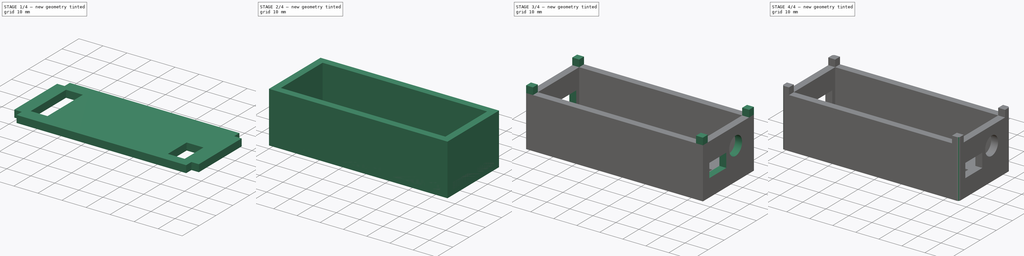
[diagram: build sequence overview — one tinted view per stage of 4, left to right]
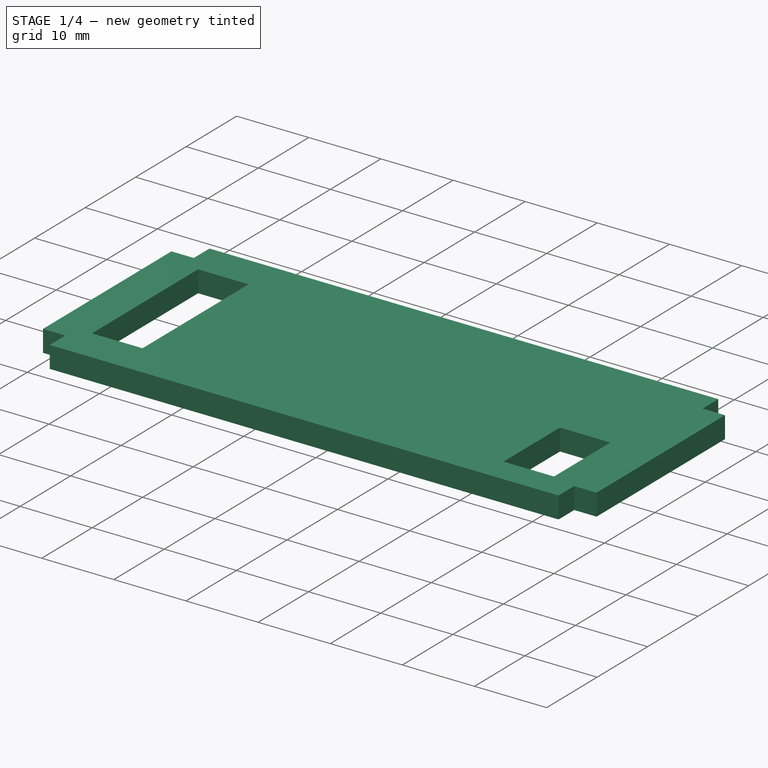
[diagram: stage 1 of 4 — iso view after this stage's code; geometry added in this stage tinted green]
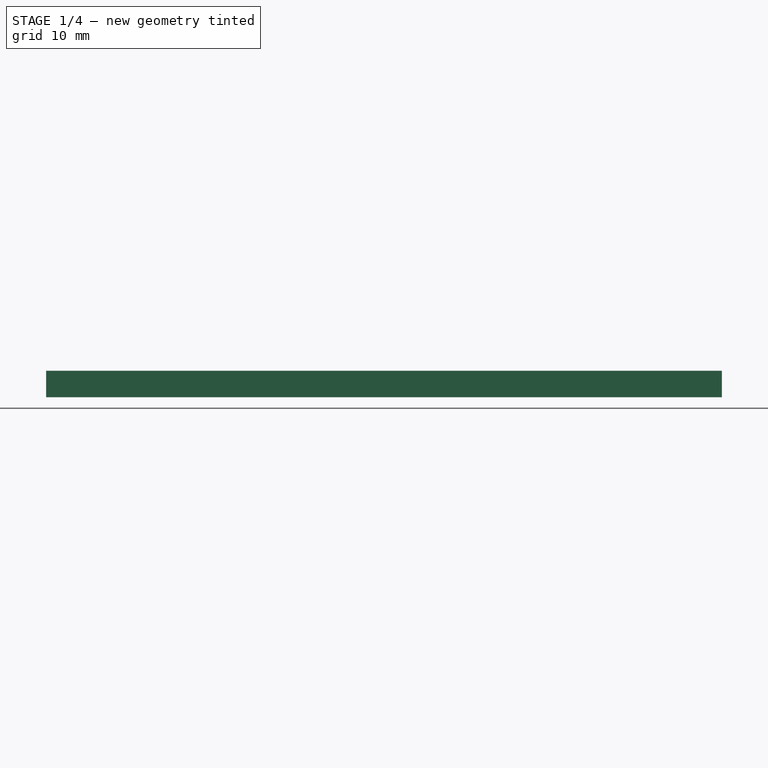
[diagram: stage 1 of 4 — front view after this stage's code; geometry added in this stage tinted green]
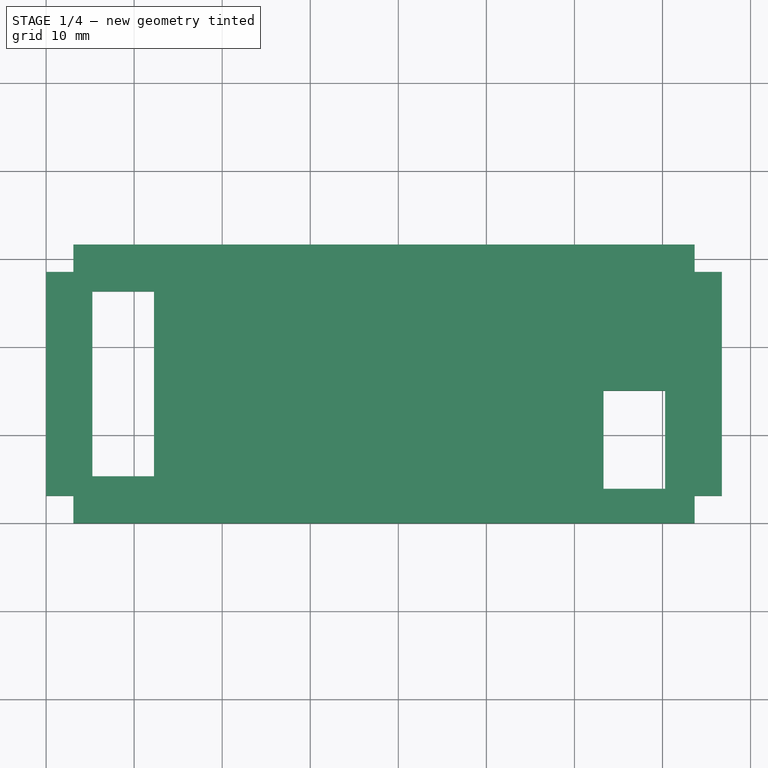
[diagram: stage 1 of 4 — top view after this stage's code; geometry added in this stage tinted green]
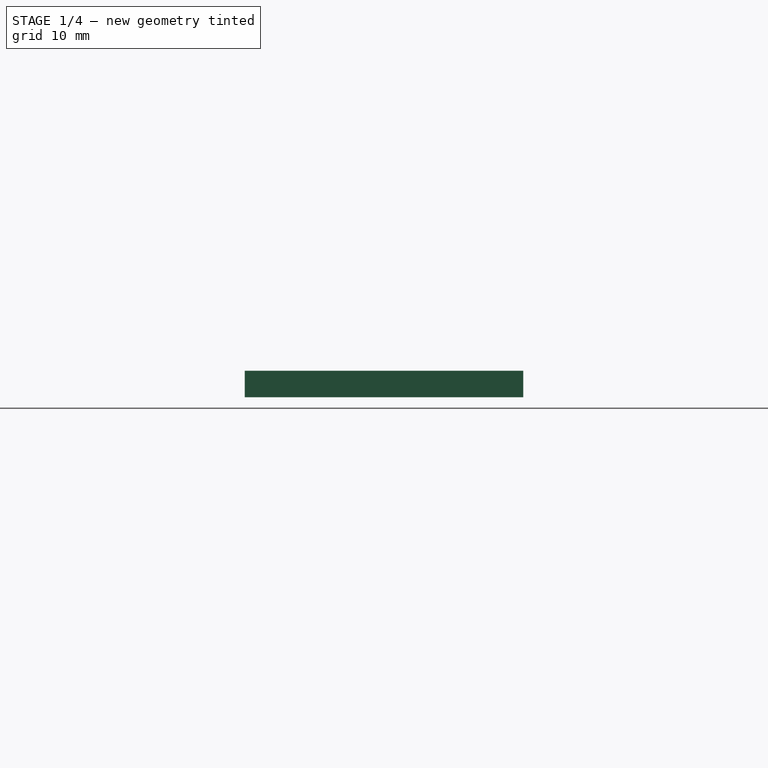
[diagram: stage 1 of 4 — right view after this stage's code; geometry added in this stage tinted green]
FCSTD DOCUMENT  (FreeCAD 0.20R29603 (Git))
Label: Case1
License: All rights reserved
LicenseURL: http://en.wikipedia.org/wiki/All_rights_reserved
objects: Sketcher::SketchObject×8, PartDesign::Pad×5, PartDesign::Pocket×3, PartDesign::Fillet×2, PartDesign::Body×2
note: 30 computed .brp shape members not serialized (recipe doc carries the construction recipe); baked Part::Feature solids carry a one-line shape summary decoded from their .brp

FEATURE [PartDesign::Body] Body
  Group = -> [Sketch,Pad,Sketch001,Pad001,Sketch002,Pad002,Sketch003,Pad003,Sketch004,Pocket,Sketch005,Pocket001,Fillet,Fillet001]
  Origin = -> Origin
  Tip = -> Fillet001
FEATURE [Sketcher::SketchObject] Sketch006
  FullyConstrained = true
  MapMode = 5
  Support = -> [XY_Plane001]
  sketch-geometry (18):
    g0: LineSegment StartX=3.1 StartY=31.63 StartZ=0 EndX=3.1 EndY=28.53 EndZ=0
    g1: LineSegment StartX=3.1 StartY=28.53 StartZ=0 EndX=0 EndY=28.53 EndZ=0
    g2: LineSegment StartX=0 StartY=28.53 StartZ=0 EndX=0 EndY=3.1 EndZ=0
    g3: LineSegment StartX=0 StartY=3.1 StartZ=0 EndX=3.1 EndY=3.1 EndZ=0
    g4: LineSegment StartX=3.1 StartY=3.1 StartZ=0 EndX=3.1 EndY=0 EndZ=0
    g5: LineSegment StartX=3.1 StartY=0 StartZ=0 EndX=73.648 EndY=0 EndZ=0
    g6: LineSegment StartX=73.648 StartY=0 StartZ=0 EndX=73.648 EndY=3.1 EndZ=0
    g7: LineSegment StartX=73.648 StartY=3.1 StartZ=0 EndX=76.748 EndY=3.1 EndZ=0
    g8: LineSegment StartX=76.748 StartY=3.1 StartZ=0 EndX=76.748 EndY=28.53 EndZ=0
    g9: LineSegment StartX=76.748 StartY=28.53 StartZ=0 EndX=73.648 EndY=28.53 EndZ=0
    g10: LineSegment StartX=73.648 StartY=28.53 StartZ=0 EndX=73.648 EndY=31.63 EndZ=0
    g11: LineSegment StartX=73.648 StartY=31.63 StartZ=0 EndX=3.1 EndY=31.63 EndZ=0
    g12: LineSegment StartX=73.648 StartY=28.53 StartZ=0 EndX=73.648 EndY=3.1 EndZ=0
    g13: LineSegment StartX=73.648 StartY=3.1 StartZ=0 EndX=3.1 EndY=3.1 EndZ=0
    g14: LineSegment StartX=3.1 StartY=3.1 StartZ=0 EndX=3.1 EndY=28.53 EndZ=0
    g15: LineSegment StartX=3.1 StartY=28.53 StartZ=0 EndX=73.648 EndY=28.53 EndZ=0
    g16: LineSegment StartX=0 StartY=3.1 StartZ=0 EndX=0 EndY=0 EndZ=0
    g17: LineSegment StartX=0 StartY=0 StartZ=0 EndX=3.1 EndY=0 EndZ=0
  constraints (48):
    c: Vertical(g0)
    c: Coincident(g0,g1)
    c: Horizontal(g1)
    c: Coincident(g1,g2)
    c: Vertical(g2)
    c: Coincident(g2,g3)
    c: Horizontal(g3)
    c: Coincident(g3,g4)
    c: Vertical(g4)
    c: Coincident(g4,g5)
    c: Horizontal(g5)
    c: Coincident(g5,g6)
    c: Coincident(g6,g7)
    c: Horizontal(g7)
    c: Coincident(g7,g8)
    c: Coincident(g8,g9)
    c: Coincident(g9,g10)
    c: Vertical(g10)
    c: Coincident(g10,g11)
    c: Coincident(g11,g0)
    c: Horizontal(g11)
    c: Horizontal(g9)
    c: Vertical(g6)
    c: Vertical(g8)
    c: Coincident(g12,g9)
    c: Coincident(g12,g6)
    c: Vertical(g12)
    c: Coincident(g13,g6)
    c: Coincident(g13,g3)
    c: Horizontal(g13)
    c: Coincident(g14,g3)
    c: Coincident(g14,g0)
    c: Vertical(g14)
    c: Coincident(g15,g0)
    c: Coincident(g15,g9)
    c: Horizontal(g15)
    c: DistanceX(g2,g7) = 76.748
    c: DistanceY(g4,g0) = 31.63
    c: Equal(g4,g0)
    c: Equal(g3,g7)
    c: Equal(g4,g3)
    c: Coincident(g16,g2)
    c: Vertical(g16)
    c: Coincident(g17,g16)
    c: Coincident(g17,g4)
    c: Horizontal(g17)
    c: Coincident(g16,g-1)
    c: Distance(g4) = 3.1
FEATURE [PartDesign::Pad] Pad004
  Direction = (0,0,1)
  Length = 3
  Length2 = 10
  Profile = -> Sketch006
  ReferenceAxis = -> Sketch006 [N_Axis]
  Type = 0
FEATURE [Sketcher::SketchObject] Sketch007
  ExternalGeometry = -> [Pad004]
  FullyConstrained = true
  MapMode = 5
  Placement = pos=(0,0,3) rot=(0,0,1;0rad)
  Support = -> [Pad004]
  expr: Constraints[15] = 3 + 0.75 + 2 - 0.5
  expr: Constraints[27] = 10.16 + 1
  expr: Constraints[28] = 3 + 0.75 + 0.64 - 0.5
  expr: Constraints[31] = 3 + 0.75 + 2.7
  sketch-geometry (12):
    g0: LineSegment StartX=5.25 StartY=26.315 StartZ=0 EndX=12.25 EndY=26.315 EndZ=0
    g1: LineSegment StartX=12.25 StartY=26.315 StartZ=0 EndX=12.25 EndY=5.315 EndZ=0
    g2: LineSegment StartX=12.25 StartY=5.315 StartZ=0 EndX=5.25 EndY=5.315 EndZ=0
    g3: LineSegment StartX=5.25 StartY=5.315 StartZ=0 EndX=5.25 EndY=26.315 EndZ=0
    g4: LineSegment StartX=3.1 StartY=31.63 StartZ=0 EndX=5.25 EndY=26.315 EndZ=0
    g5: LineSegment StartX=5.25 StartY=5.315 StartZ=0 EndX=3.1 EndY=0 EndZ=0
    g6: LineSegment StartX=73.648 StartY=0 StartZ=0 EndX=70.298 EndY=3.89 EndZ=0
    g7: LineSegment StartX=70.298 StartY=3.89 StartZ=0 EndX=63.298 EndY=3.89 EndZ=0
    g8: LineSegment StartX=63.298 StartY=3.89 StartZ=0 EndX=63.298 EndY=15.05 EndZ=0
    g9: LineSegment StartX=63.298 StartY=15.05 StartZ=0 EndX=70.298 EndY=15.05 EndZ=0
    g10: LineSegment StartX=70.298 StartY=15.05 StartZ=0 EndX=70.298 EndY=3.89 EndZ=0
    g11: LineSegment StartX=70.298 StartY=3.89 StartZ=0 EndX=76.748 EndY=3.1 EndZ=0
  constraints (32):
    c: Coincident(g0,g1)
    c: Coincident(g1,g2)
    c: Coincident(g2,g3)
    c: Coincident(g3,g0)
    c: Horizontal(g0)
    c: Horizontal(g2)
    c: Vertical(g1)
    c: Vertical(g3)
    c: Distance(g1) = 21
    c: Distance(g0) = 7
    c: Coincident(g4,g-3)
    c: Coincident(g4,g0)
    c: Coincident(g5,g2)
    c: Coincident(g5,g-4)
    c: Equal(g5,g4)
    c: DistanceX(g-5,g0) = 5.25
    c: Coincident(g6,g-4)
    c: Coincident(g7,g8)
    c: Coincident(g8,g9)
    c: Coincident(g9,g10)
    c: Coincident(g10,g7)
    c: Horizontal(g7)
    c: Horizontal(g9)
    c: Vertical(g8)
    c: Vertical(g10)
    c: Coincident(g7,g6)
    c: Equal(g9,g0)
    c: Distance(g8) = 11.16
    c: DistanceY(g6,g6) = 3.89
    c: Coincident(g11,g7)
    c: Coincident(g11,g-6)
    c: DistanceX(g11,g11) = 6.45
FEATURE [PartDesign::Pocket] Pocket002
  BaseFeature = -> Pad004
  Direction = (0,0,-1)
  Length = 5
  Length2 = 5
  Profile = -> Sketch007
  ReferenceAxis = -> Sketch007 [N_Axis]
  Type = 1
FEATURE [PartDesign::Body] Body001  label="TopCover"
  Group = -> [Sketch006,Pad004,Sketch007,Pocket002]
  Origin = -> Origin001
  Placement = pos=(0,0,20) rot=(0,0,1;0rad)
  Tip = -> Pocket002
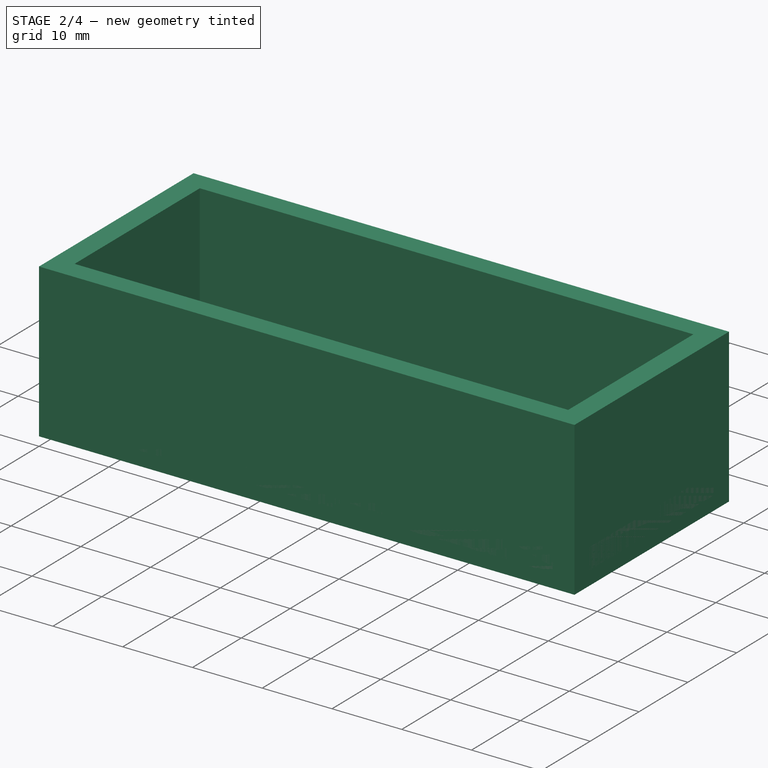
[diagram: stage 2 of 4 — iso view after this stage's code; geometry added in this stage tinted green]
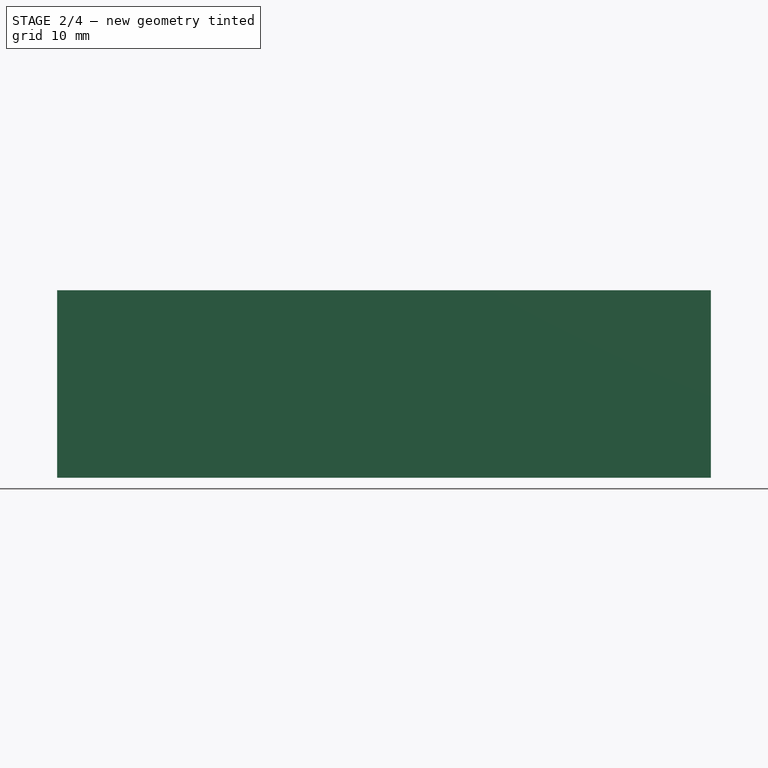
[diagram: stage 2 of 4 — front view after this stage's code; geometry added in this stage tinted green]
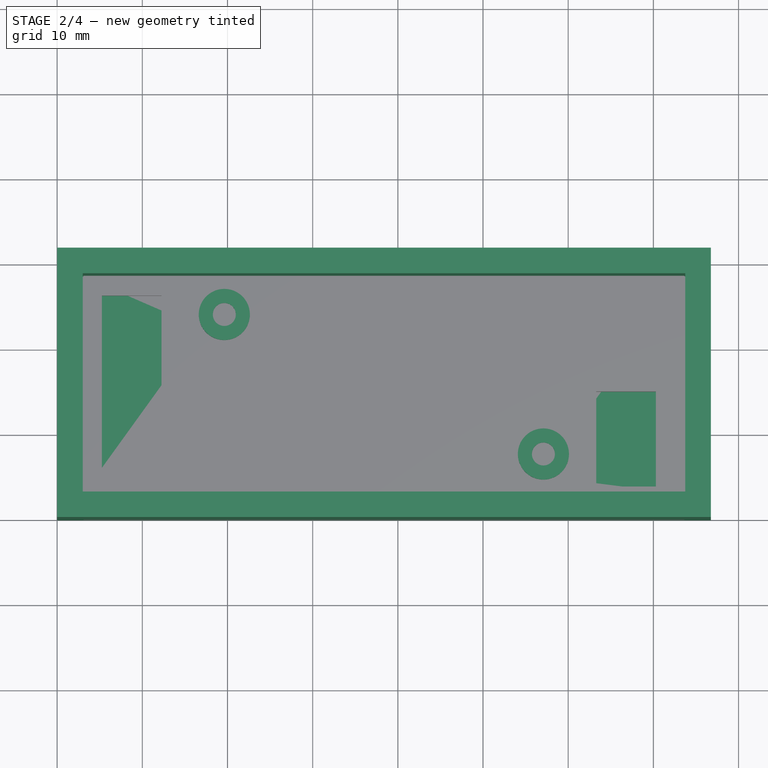
[diagram: stage 2 of 4 — top view after this stage's code; geometry added in this stage tinted green]
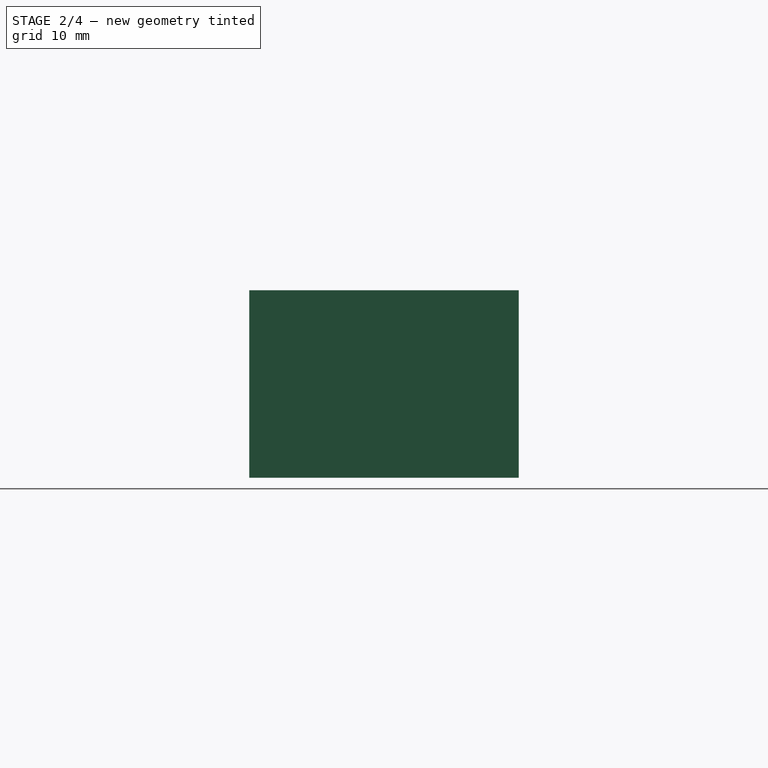
[diagram: stage 2 of 4 — right view after this stage's code; geometry added in this stage tinted green]
FEATURE [Sketcher::SketchObject] Sketch
  FullyConstrained = true
  MapMode = 5
  Support = -> [XY_Plane]
  expr: Constraints[51] = 3 + 0.75
  expr: Constraints[52] = 3 + 0.75 + 2.7
  sketch-geometry (18):
    g0: LineSegment StartX=3.75 StartY=3.75 StartZ=0 EndX=70.298 EndY=3.75 EndZ=0
    g1: LineSegment StartX=70.298 StartY=3.75 StartZ=0 EndX=70.298 EndY=27.88 EndZ=0
    g2: LineSegment StartX=70.298 StartY=27.88 StartZ=0 EndX=3.75 EndY=27.88 EndZ=0
    g3: LineSegment StartX=3.75 StartY=27.88 StartZ=0 EndX=3.75 EndY=3.75 EndZ=0
    g4: LineSegment StartX=0 StartY=0 StartZ=0 EndX=76.748 EndY=0 EndZ=0
    g5: LineSegment StartX=76.748 StartY=0 StartZ=0 EndX=76.748 EndY=31.63 EndZ=0
    g6: LineSegment StartX=76.748 StartY=31.63 StartZ=0 EndX=0 EndY=31.63 EndZ=0
    g7: LineSegment StartX=0 StartY=31.63 StartZ=0 EndX=0 EndY=0 EndZ=0
    g8: LineSegment StartX=76.748 StartY=28.63 StartZ=0 EndX=0 EndY=28.63 EndZ=0
    g9: LineSegment StartX=0 StartY=28.63 StartZ=0 EndX=0 EndY=3 EndZ=0
    g10: LineSegment StartX=0 StartY=3 StartZ=0 EndX=76.748 EndY=3 EndZ=0
    g11: LineSegment StartX=76.748 StartY=3 StartZ=0 EndX=76.748 EndY=28.63 EndZ=0
    g12: LineSegment StartX=70.298 StartY=27.88 StartZ=0 EndX=70.298 EndY=28.63 EndZ=0
    g13: LineSegment StartX=3.75 StartY=3.75 StartZ=0 EndX=3.75 EndY=3 EndZ=0
    g14: LineSegment StartX=0 StartY=3 StartZ=0 EndX=0 EndY=0 EndZ=0
    g15: LineSegment StartX=76.748 StartY=28.63 StartZ=0 EndX=76.748 EndY=31.63 EndZ=0
    g16: LineSegment StartX=3.75 StartY=3.75 StartZ=0 EndX=0 EndY=3.75 EndZ=0
    g17: LineSegment StartX=70.298 StartY=27.88 StartZ=0 EndX=76.748 EndY=27.88 EndZ=0
  constraints (55):
    c: Coincident(g0,g1)
    c: Coincident(g1,g2)
    c: Coincident(g2,g3)
    c: Coincident(g3,g0)
    c: Horizontal(g0)
    c: Horizontal(g2)
    c: Vertical(g1)
    c: Vertical(g3)
    c: Distance(g3) = 24.13
    c: Distance(g0) = 66.548
    c: Coincident(g4,g5)
    c: Coincident(g5,g6)
    c: Coincident(g6,g7)
    c: Coincident(g7,g4)
    c: Horizontal(g4)
    c: Horizontal(g6)
    c: Vertical(g5)
    c: Vertical(g7)
    c: Coincident(g4,g-1)
    c: Coincident(g8,g9)
    c: Coincident(g9,g10)
    c: Coincident(g10,g11)
    c: Coincident(g11,g8)
    c: Horizontal(g8)
    c: Horizontal(g10)
    c: Vertical(g9)
    c: Vertical(g11)
    c: Coincident(g12,g1)
    c: PointOnObject(g12,g8)
    c: Vertical(g12)
    c: Coincident(g13,g0)
    c: PointOnObject(g13,g10)
    c: Vertical(g13)
    c: Equal(g13,g12)
    c: Distance(g13) = 0.75
    c: Coincident(g14,g9)
    c: PointOnObject(g14,g4)
    c: Vertical(g14)
    c: Coincident(g15,g8)
    c: PointOnObject(g15,g6)
    c: Vertical(g15)
    c: Equal(g15,g14)
    c: Distance(g14) = 3
    c: Vertical(g15,g5)
    c: Vertical(g14,g4)
    c: Coincident(g16,g0)
    c: PointOnObject(g16,g7)
    c: Horizontal(g16)
    c: Coincident(g17,g1)
    c: PointOnObject(g17,g5)
    c: Horizontal(g17)
    c: Distance(g16) = 3.75
    c: Distance(g17) = 6.45
    c: Distance(g6) = 76.748
    c: Distance(g7) = 31.63
FEATURE [PartDesign::Pad] Pad
  Direction = (0,0,1)
  Length = 2
  Length2 = 10
  Profile = -> Sketch
  ReferenceAxis = -> Sketch [N_Axis]
  Reversed = true
  Type = 0
FEATURE [Sketcher::SketchObject] Sketch001
  FullyConstrained = true
  MapMode = 5
  Support = -> [Pad]
  expr: Constraints[1] = Sketch.Constraints[8]
  expr: Constraints[20] = Sketch.Constraints[8]
  expr: Constraints[21] = Sketch.Constraints[9]
  expr: Constraints[46] = Sketch.Constraints[34]
  expr: Constraints[54] = Sketch.Constraints[42]
  expr: Constraints[64] = Sketch.Constraints[51]
  sketch-geometry (23):
    g0: LineSegment StartX=3.75 StartY=27.88 StartZ=0 EndX=3.75 EndY=3.75 EndZ=0
    g1: Circle CenterX=19.625 CenterY=24.07 CenterZ=0 NormalX=0 NormalY=0 NormalZ=1 AngleXU=0 Radius=3
    g2: Circle CenterX=19.625 CenterY=24.07 CenterZ=0 NormalX=0 NormalY=0 NormalZ=1 AngleXU=0 Radius=1.35
    g3: Circle CenterX=57.09 CenterY=7.687 CenterZ=0 NormalX=0 NormalY=0 NormalZ=1 AngleXU=0 Radius=3
    g4: Circle CenterX=57.09 CenterY=7.687 CenterZ=0 NormalX=0 NormalY=0 NormalZ=1 AngleXU=0 Radius=1.35
    g5: LineSegment StartX=3.75 StartY=3.75 StartZ=0 EndX=70.298 EndY=3.75 EndZ=0
    g6: LineSegment StartX=70.298 StartY=3.75 StartZ=0 EndX=70.298 EndY=27.88 EndZ=0
    g7: LineSegment StartX=70.298 StartY=27.88 StartZ=0 EndX=3.75 EndY=27.88 EndZ=0
    g8: LineSegment StartX=3.75 StartY=27.88 StartZ=0 EndX=3.75 EndY=3.75 EndZ=0
    g9: LineSegment StartX=0 StartY=0 StartZ=0 EndX=74.048 EndY=0 EndZ=0
    g10: LineSegment StartX=74.048 StartY=0 StartZ=0 EndX=74.048 EndY=31.63 EndZ=0
    g11: LineSegment StartX=74.048 StartY=31.63 StartZ=0 EndX=0 EndY=31.63 EndZ=0
    g12: LineSegment StartX=0 StartY=31.63 StartZ=0 EndX=0 EndY=0 EndZ=0
    g13: LineSegment StartX=74.048 StartY=28.63 StartZ=0 EndX=0 EndY=28.63 EndZ=0
    g14: LineSegment StartX=0 StartY=28.63 StartZ=0 EndX=0 EndY=3 EndZ=0
    g15: LineSegment StartX=0 StartY=3 StartZ=0 EndX=74.048 EndY=3 EndZ=0
    g16: LineSegment StartX=74.048 StartY=3 StartZ=0 EndX=74.048 EndY=28.63 EndZ=0
    g17: LineSegment StartX=70.298 StartY=27.88 StartZ=0 EndX=70.298 EndY=28.63 EndZ=0
    g18: LineSegment StartX=3.75 StartY=3.75 StartZ=0 EndX=3.75 EndY=3 EndZ=0
    g19: LineSegment StartX=0 StartY=3 StartZ=0 EndX=0 EndY=0 EndZ=0
    g20: LineSegment StartX=74.048 StartY=28.63 StartZ=0 EndX=74.048 EndY=31.63 EndZ=0
    g21: LineSegment StartX=3.75 StartY=3.75 StartZ=0 EndX=0 EndY=3.75 EndZ=0
    g22: LineSegment StartX=70.298 StartY=27.88 StartZ=0 EndX=74.048 EndY=27.88 EndZ=0
  constraints (66):
    c: Vertical(g0)
    c: Distance(g0) = 24.13
    c: Coincident(g2,g1)
    c: Coincident(g4,g3)
    c: Equal(g4,g2)
    c: Equal(g1,g3)
    c: Diameter(g2) = 2.7
    c: Diameter(g1) = 6
    c: DistanceX(g0,g1) = 15.875
    c: DistanceX(g0,g3) = 53.34
    c: DistanceY(g1,g0) = 3.81
    c: DistanceY(g3,g0) = 20.193
    c: Coincident(g5,g6)
    c: Coincident(g6,g7)
    c: Coincident(g7,g8)
    c: Coincident(g8,g5)
    c: Horizontal(g5)
    c: Horizontal(g7)
    c: Vertical(g6)
    c: Vertical(g8)
    c: Distance(g8) = 24.13
    c: Distance(g5) = 66.548
    c: Coincident(g9,g10)
    c: Coincident(g10,g11)
    c: Coincident(g11,g12)
    c: Coincident(g12,g9)
    c: Horizontal(g9)
    c: Horizontal(g11)
    c: Vertical(g10)
    c: Vertical(g12)
    c: Coincident(g9,g-1)
    c: Coincident(g13,g14)
    c: Coincident(g14,g15)
    c: Coincident(g15,g16)
    c: Coincident(g16,g13)
    c: Horizontal(g13)
    c: Horizontal(g15)
    c: Vertical(g14)
    c: Vertical(g16)
    c: Coincident(g17,g6)
    c: PointOnObject(g17,g13)
    c: Vertical(g17)
    c: Coincident(g18,g5)
    c: PointOnObject(g18,g15)
    c: Vertical(g18)
    c: Equal(g18,g17)
    c: Distance(g18) = 0.75
    c: Coincident(g19,g14)
    c: PointOnObject(g19,g9)
    c: Vertical(g19)
    c: Coincident(g20,g13)
    c: PointOnObject(g20,g11)
    c: Vertical(g20)
    c: Equal(g20,g19)
    c: Distance(g19) = 3
    c: Vertical(g20,g10)
    c: Vertical(g19,g9)
    c: Coincident(g21,g5)
    c: PointOnObject(g21,g12)
    c: Horizontal(g21)
    c: Coincident(g22,g6)
    c: PointOnObject(g22,g10)
    c: Horizontal(g22)
    c: Equal(g22,g21)
    c: Distance(g21) = 3.75
    c: Coincident(g0,g7)
FEATURE [PartDesign::Pad] Pad001
  BaseFeature = -> Pad
  Direction = (0,0,1)
  Length = 4
  Length2 = 10
  Profile = -> Sketch001
  ReferenceAxis = -> Sketch001 [N_Axis]
  Type = 0
FEATURE [Sketcher::SketchObject] Sketch002
  ExternalGeometry = -> [Pad001]
  FullyConstrained = true
  MapMode = 5
  Support = -> [Pad001]
  sketch-geometry (11):
    g0: LineSegment StartX=0 StartY=0 StartZ=0 EndX=76.748 EndY=0 EndZ=0
    g1: LineSegment StartX=76.748 StartY=0 StartZ=0 EndX=76.748 EndY=31.63 EndZ=0
    g2: LineSegment StartX=0 StartY=31.63 StartZ=0 EndX=0 EndY=0 EndZ=0
    g3: LineSegment StartX=76.748 StartY=31.63 StartZ=0 EndX=0 EndY=31.63 EndZ=0
    g4: LineSegment StartX=3 StartY=28.63 StartZ=0 EndX=73.748 EndY=28.63 EndZ=0
    g5: LineSegment StartX=73.748 StartY=28.63 StartZ=0 EndX=73.748 EndY=3 EndZ=0
    g6: LineSegment StartX=73.748 StartY=3 StartZ=0 EndX=3 EndY=3 EndZ=0
    g7: LineSegment StartX=3 StartY=3 StartZ=0 EndX=3 EndY=28.63 EndZ=0
    g8: LineSegment StartX=73.748 StartY=3 StartZ=0 EndX=76.748 EndY=0 EndZ=0
    g9: LineSegment StartX=73.748 StartY=28.63 StartZ=0 EndX=76.748 EndY=31.63 EndZ=0
    g10: LineSegment StartX=3 StartY=28.63 StartZ=0 EndX=0 EndY=31.63 EndZ=0
  constraints (28):
    c: Coincident(g0,g1)
    c: Coincident(g2,g0)
    c: Horizontal(g0)
    c: Vertical(g1)
    c: Vertical(g2)
    c: Coincident(g0,g-4)
    c: Horizontal(g3)
    c: Coincident(g3,g-3)
    c: Coincident(g1,g3)
    c: Coincident(g2,g3)
    c: Coincident(g4,g5)
    c: Coincident(g5,g6)
    c: Coincident(g6,g7)
    c: Coincident(g7,g4)
    c: Horizontal(g4)
    c: Horizontal(g6)
    c: Vertical(g5)
    c: Vertical(g7)
    c: Coincident(g8,g5)
    c: Coincident(g8,g0)
    c: Coincident(g9,g4)
    c: Coincident(g9,g1)
    c: Coincident(g10,g4)
    c: Coincident(g10,g2)
    c: Equal(g10,g9)
    c: Equal(g9,g8)
    c: DistanceX(g10,g10) = 3
    c: DistanceY(g10,g10) = 3
FEATURE [PartDesign::Pad] Pad002
  BaseFeature = -> Pad001
  Direction = (0,0,1)
  Length = 20
  Length2 = 10
  Profile = -> Sketch002
  ReferenceAxis = -> Sketch002 [N_Axis]
  Type = 0
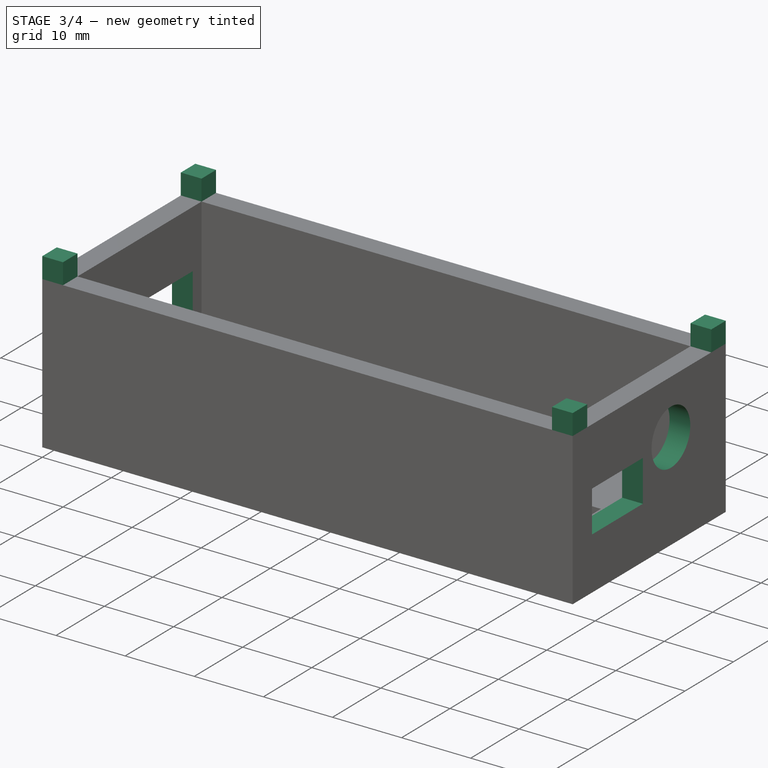
[diagram: stage 3 of 4 — iso view after this stage's code; geometry added in this stage tinted green]
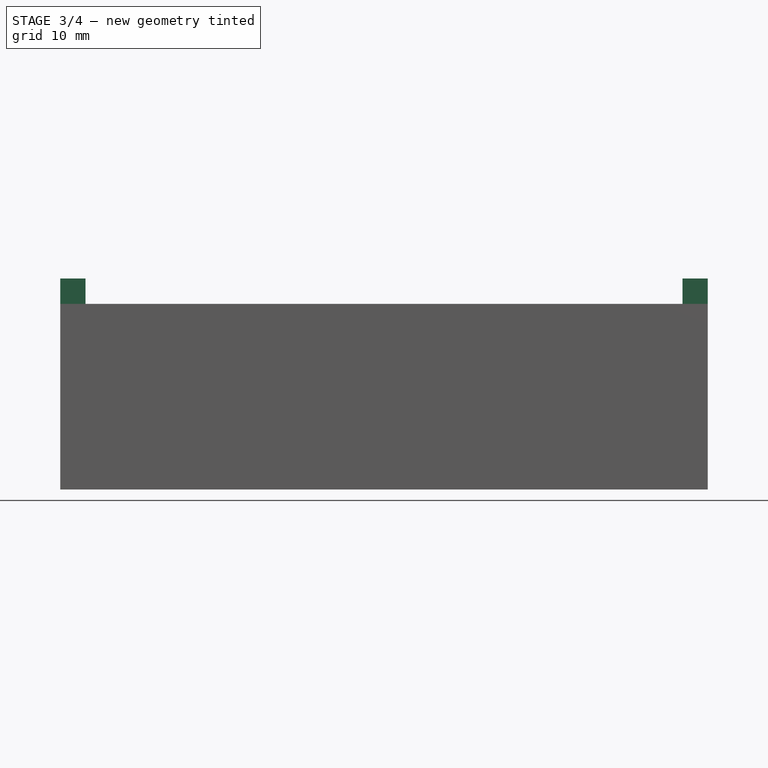
[diagram: stage 3 of 4 — front view after this stage's code; geometry added in this stage tinted green]
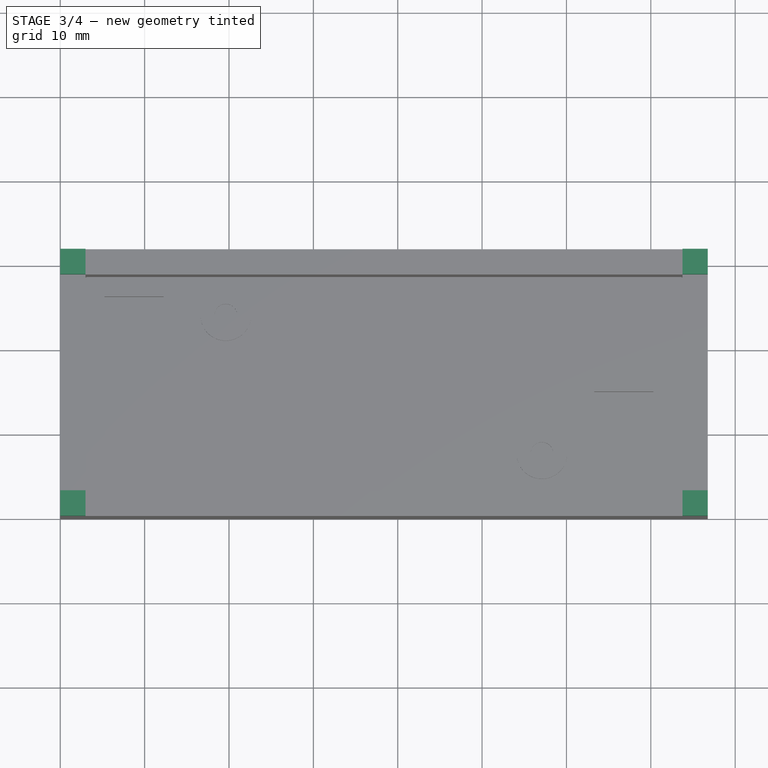
[diagram: stage 3 of 4 — top view after this stage's code; geometry added in this stage tinted green]
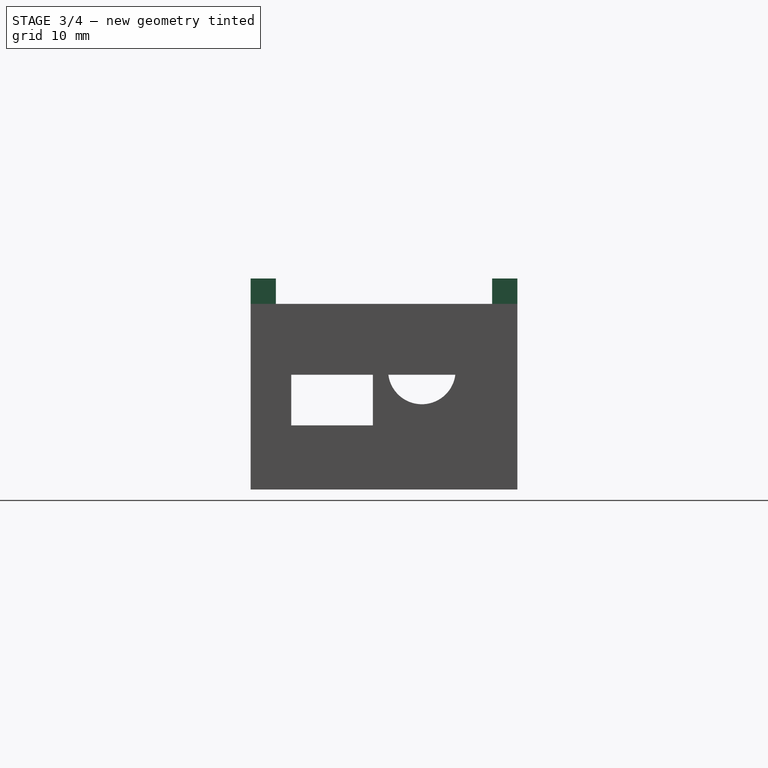
[diagram: stage 3 of 4 — right view after this stage's code; geometry added in this stage tinted green]
FEATURE [Sketcher::SketchObject] Sketch003
  ExternalGeometry = -> [Pad002]
  FullyConstrained = true
  MapMode = 5
  Placement = pos=(0,0,20) rot=(0,0,1;0rad)
  Support = -> [Pad002]
  sketch-geometry (16):
    g0: LineSegment StartX=-2.91647e-11 StartY=31.63 StartZ=0 EndX=3 EndY=31.63 EndZ=0
    g1: LineSegment StartX=3 StartY=31.63 StartZ=0 EndX=3 EndY=28.63 EndZ=0
    g2: LineSegment StartX=3 StartY=28.63 StartZ=0 EndX=-2.91647e-11 EndY=28.63 EndZ=0
    g3: LineSegment StartX=-2.91647e-11 StartY=28.63 StartZ=0 EndX=-2.91647e-11 EndY=31.63 EndZ=0
    g4: LineSegment StartX=76.748 StartY=31.63 StartZ=0 EndX=73.748 EndY=31.63 EndZ=0
    g5: LineSegment StartX=73.748 StartY=31.63 StartZ=0 EndX=73.748 EndY=28.63 EndZ=0
    g6: LineSegment StartX=73.748 StartY=28.63 StartZ=0 EndX=76.748 EndY=28.63 EndZ=0
    g7: LineSegment StartX=76.748 StartY=28.63 StartZ=0 EndX=76.748 EndY=31.63 EndZ=0
    g8: LineSegment StartX=76.748 StartY=0 StartZ=0 EndX=73.748 EndY=0 EndZ=0
    g9: LineSegment StartX=73.748 StartY=0 StartZ=0 EndX=73.748 EndY=3 EndZ=0
    g10: LineSegment StartX=73.748 StartY=3 StartZ=0 EndX=76.748 EndY=3 EndZ=0
    g11: LineSegment StartX=76.748 StartY=3 StartZ=0 EndX=76.748 EndY=0 EndZ=0
    g12: LineSegment StartX=0 StartY=0 StartZ=0 EndX=3 EndY=0 EndZ=0
    g13: LineSegment StartX=3 StartY=0 StartZ=0 EndX=3 EndY=3 EndZ=0
    g14: LineSegment StartX=3 StartY=3 StartZ=0 EndX=0 EndY=3 EndZ=0
    g15: LineSegment StartX=0 StartY=3 StartZ=0 EndX=0 EndY=0 EndZ=0
  constraints (42):
    c: Coincident(g0,g1)
    c: Coincident(g1,g2)
    c: Coincident(g2,g3)
    c: Coincident(g3,g0)
    c: Horizontal(g0)
    c: Horizontal(g2)
    c: Vertical(g1)
    c: Coincident(g4,g5)
    c: Coincident(g5,g6)
    c: Coincident(g6,g7)
    c: Coincident(g7,g4)
    c: Horizontal(g4)
    c: Horizontal(g6)
    c: Vertical(g5)
    c: Coincident(g8,g9)
    c: Coincident(g9,g10)
    c: Coincident(g10,g11)
    c: Coincident(g11,g8)
    c: Horizontal(g8)
    c: Horizontal(g10)
    c: Vertical(g9)
    c: Coincident(g12,g13)
    c: Coincident(g13,g14)
    c: Coincident(g14,g15)
    c: Coincident(g15,g12)
    c: Horizontal(g12)
    c: Horizontal(g14)
    c: Vertical(g13)
    c: Equal(g2,g14)
    c: Equal(g14,g10)
    c: Equal(g10,g6)
    c: Distance(g3) = 3
    c: Equal(g2,g1)
    c: Coincident(g-5,g5)
    c: Coincident(g9,g-5)
    c: Coincident(g1,g-3)
    c: Coincident(g13,g-4)
    c: Coincident(g12,g-1)
    c: Vertical(g15)
    c: Vertical(g3)
    c: Coincident(g-6,g8)
    c: Coincident(g-6,g4)
FEATURE [PartDesign::Pad] Pad003
  BaseFeature = -> Pad002
  Direction = (0,0,1)
  Length = 3
  Length2 = 10
  Profile = -> Sketch003
  ReferenceAxis = -> Sketch003 [N_Axis]
  Type = 0
FEATURE [Sketcher::SketchObject] Sketch004
  ExternalGeometry = -> [Pad003]
  FullyConstrained = true
  MapMode = 5
  Placement = pos=(0,0,0) rot=(0.57735,-0.57735,-0.57735;2.0944rad)
  Support = -> [Pad003]
  expr: Constraints[13] = 4 + 1.6
  sketch-geometry (6):
    g0: LineSegment StartX=-4.815 StartY=11.6 StartZ=0 EndX=-26.815 EndY=11.6 EndZ=0
    g1: LineSegment StartX=-26.815 StartY=11.6 StartZ=0 EndX=-26.815 EndY=5.6 EndZ=0
    g2: LineSegment StartX=-26.815 StartY=5.6 StartZ=0 EndX=-4.815 EndY=5.6 EndZ=0
    g3: LineSegment StartX=-4.815 StartY=5.6 StartZ=0 EndX=-4.815 EndY=11.6 EndZ=0
    g4: LineSegment StartX=-4.815 StartY=5.6 StartZ=0 EndX=0 EndY=0 EndZ=0
    g5: LineSegment StartX=-26.815 StartY=5.6 StartZ=0 EndX=-31.63 EndY=0 EndZ=0
  constraints (16):
    c: Coincident(g0,g1)
    c: Coincident(g1,g2)
    c: Coincident(g2,g3)
    c: Coincident(g3,g0)
    c: Horizontal(g0)
    c: Horizontal(g2)
    c: Vertical(g1)
    c: Vertical(g3)
    c: Coincident(g4,g2)
    c: Coincident(g4,g-1)
    c: Coincident(g5,g1)
    c: Coincident(g5,g-3)
    c: Equal(g4,g5)
    c: DistanceY(g4,g4) = 5.6
    c: Distance(g3) = 6
    c: Distance(g0) = 22
FEATURE [PartDesign::Pocket] Pocket
  BaseFeature = -> Pad003
  Direction = (1,0,0)
  Length = 5
  Length2 = 5
  Profile = -> Sketch004
  ReferenceAxis = -> Sketch004 [N_Axis]
  Type = 2
FEATURE [Sketcher::SketchObject] Sketch005
  FullyConstrained = true
  MapMode = 5
  Placement = pos=(76.748,0,0) rot=(0.57735,0.57735,0.57735;2.0944rad)
  Support = -> [Pocket]
  expr: Constraints[12] = 4 + 1.6
  expr: Constraints[13] = 3 + 0.5 + 0.5
  expr: Constraints[17] = 3 + 0.5 + 16.8
  expr: Constraints[18] = 4 + 1.6 + 6.5
  sketch-geometry (7):
    g0: LineSegment StartX=4 StartY=5.6 StartZ=0 EndX=14.5 EndY=5.6 EndZ=0
    g1: LineSegment StartX=14.5 StartY=5.6 StartZ=0 EndX=14.5 EndY=11.6 EndZ=0
    g2: LineSegment StartX=14.5 StartY=11.6 StartZ=0 EndX=4 EndY=11.6 EndZ=0
    g3: LineSegment StartX=4 StartY=11.6 StartZ=0 EndX=4 EndY=5.6 EndZ=0
    g4: LineSegment StartX=4 StartY=5.6 StartZ=0 EndX=0 EndY=0 EndZ=0
    g5: Circle CenterX=20.3 CenterY=12.1 CenterZ=0 NormalX=0 NormalY=0 NormalZ=1 AngleXU=0 Radius=4
    g6: LineSegment StartX=0 StartY=0 StartZ=0 EndX=20.3 EndY=12.1 EndZ=0
  constraints (19):
    c: Coincident(g0,g1)
    c: Coincident(g1,g2)
    c: Coincident(g2,g3)
    c: Coincident(g3,g0)
    c: Horizontal(g0)
    c: Horizontal(g2)
    c: Vertical(g1)
    c: Vertical(g3)
    c: Distance(g1) = 6
    c: Distance(g2) = 10.5
    c: Coincident(g4,g0)
    c: Coincident(g4,g-1)
    c: DistanceY(g4,g4) = 5.6
    c: DistanceX(g4,g4) = 4
    c: Diameter(g5) = 8
    c: Coincident(g6,g4)
    c: Coincident(g6,g5)
    c: DistanceX(g6,g6) = 20.3
    c: DistanceY(g6,g6) = 12.1
FEATURE [PartDesign::Pocket] Pocket001
  BaseFeature = -> Pocket
  Direction = (-1,0,0)
  Length = 5
  Length2 = 5
  Profile = -> Sketch005
  ReferenceAxis = -> Sketch005 [N_Axis]
  Type = 2
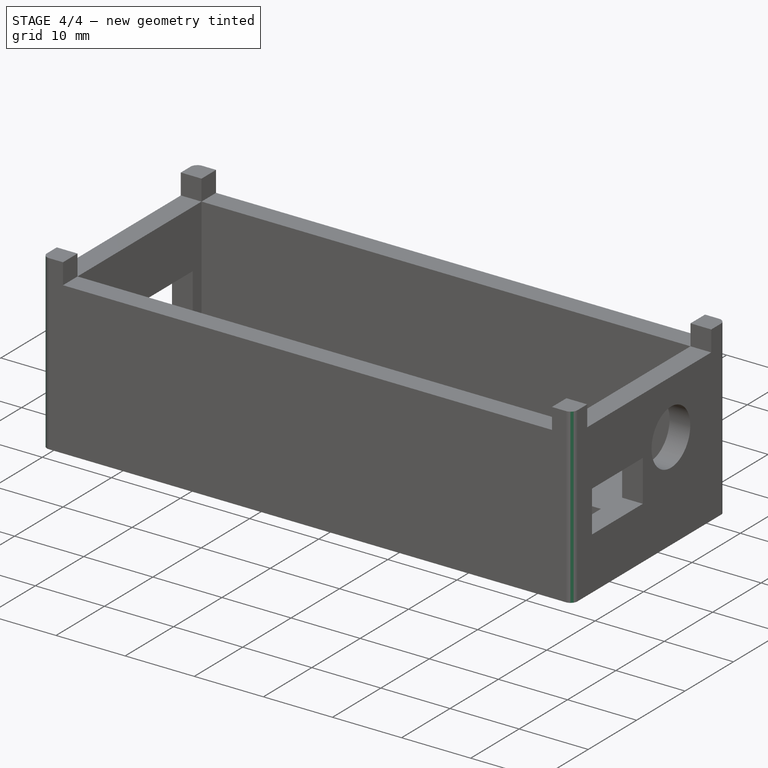
[diagram: stage 4 of 4 — iso view after this stage's code; geometry added in this stage tinted green]
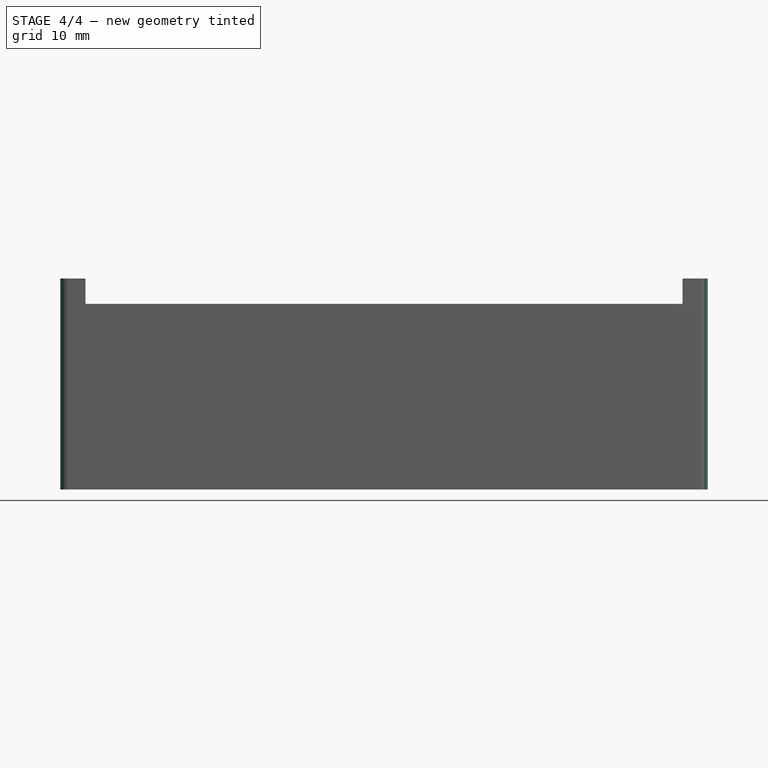
[diagram: stage 4 of 4 — front view after this stage's code; geometry added in this stage tinted green]
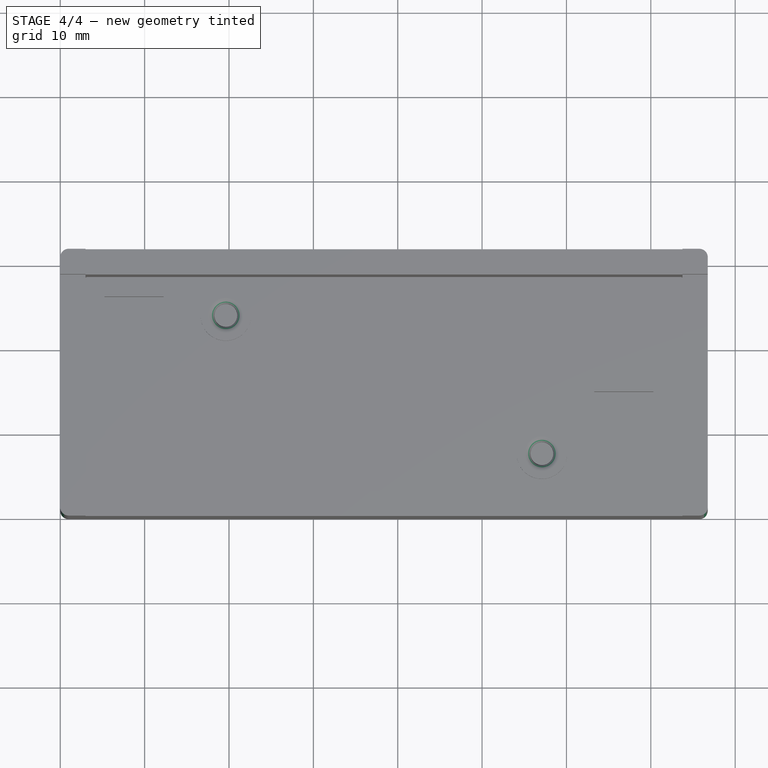
[diagram: stage 4 of 4 — top view after this stage's code; geometry added in this stage tinted green]
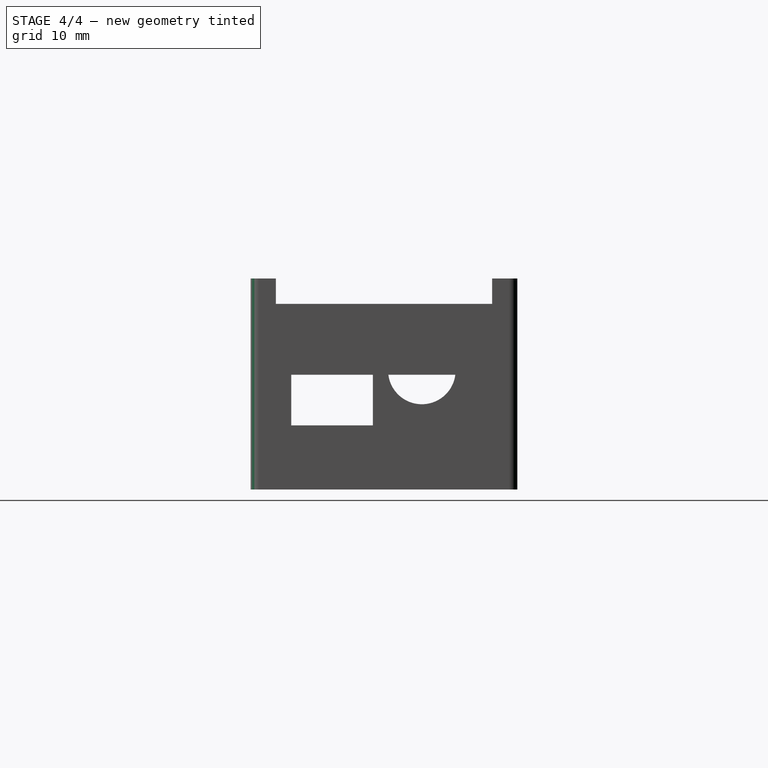
[diagram: stage 4 of 4 — right view after this stage's code; geometry added in this stage tinted green]
FEATURE [PartDesign::Fillet] Fillet
  Base = -> Pocket001 [Edge27,Edge12,Edge11,Edge18]
  BaseFeature = -> Pocket001
  Radius = 1
  SupportTransform = false
  UseAllEdges = false
FEATURE [PartDesign::Fillet] Fillet001
  Base = -> Fillet [Edge142,Edge143]
  BaseFeature = -> Fillet
  Radius = 0.75
  SupportTransform = false
  UseAllEdges = false
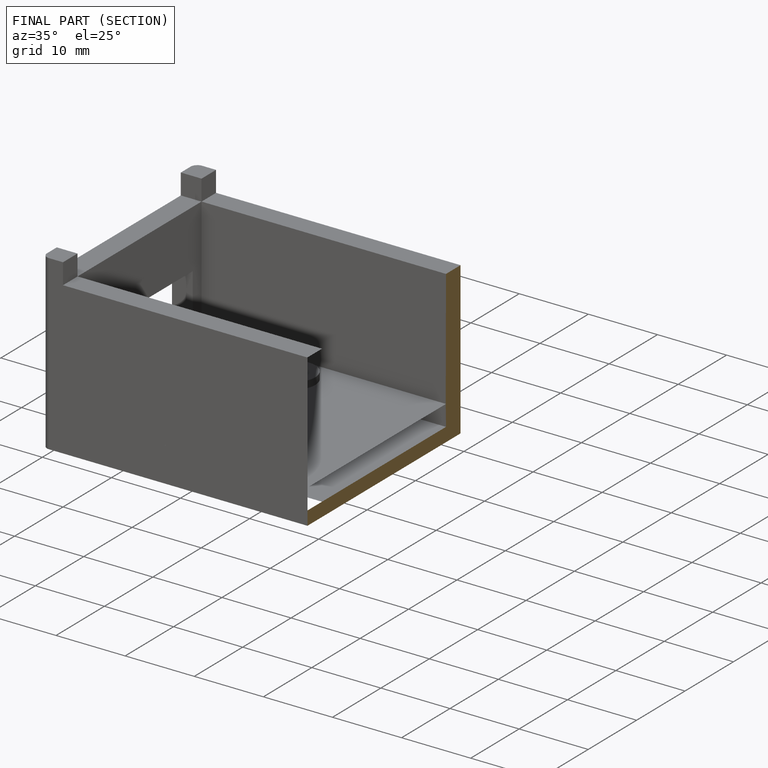
[diagram: finished part — half-section view (interior)]
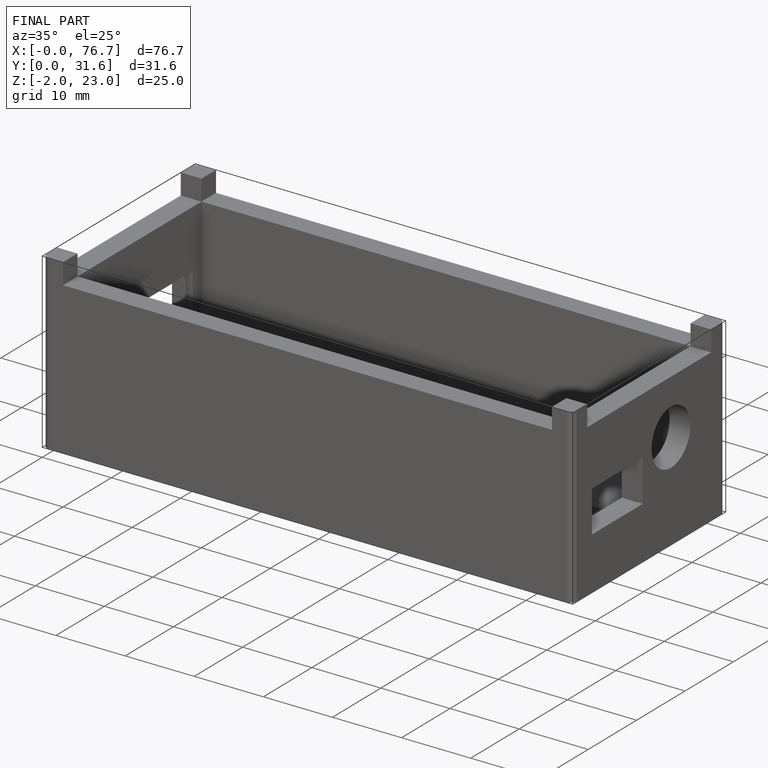
[diagram: finished part — iso view with bounding-box wireframe]
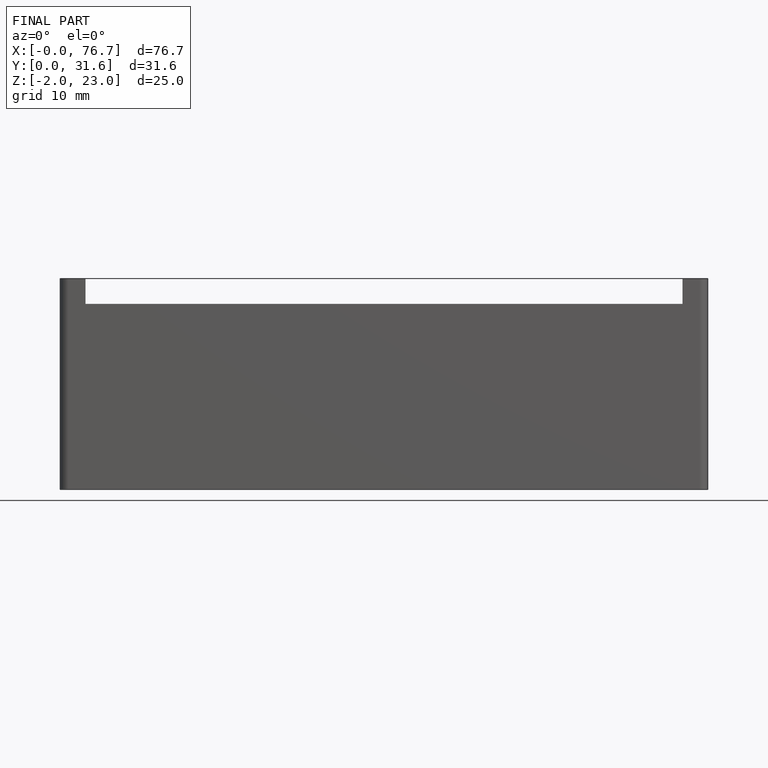
[diagram: finished part — front view with bounding-box wireframe]
